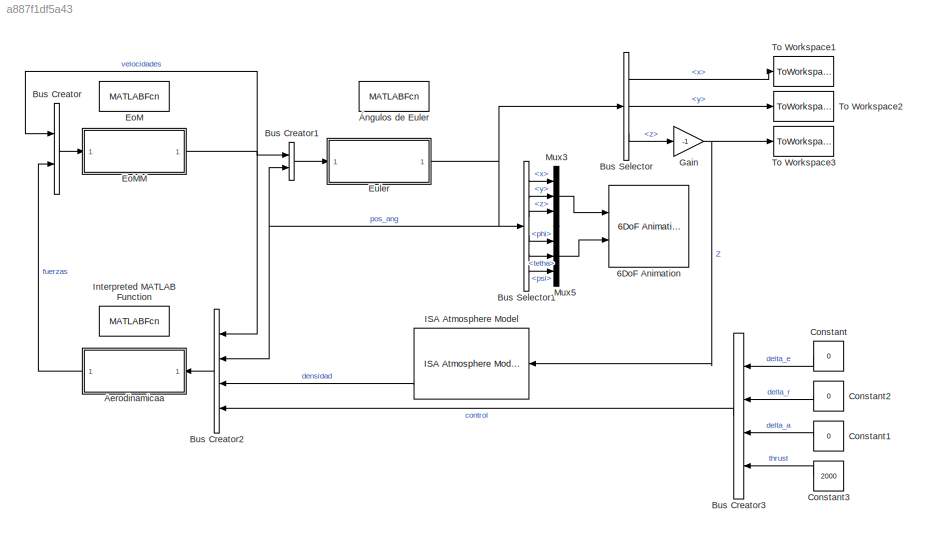
MODEL slx_a887f1df5a43
KIND model
CONFIG AbsTol = auto
CONFIG EnableMultiTasking = on
CONFIG FixedStep = 0.001
CONFIG MaxStep = auto
CONFIG MinStep = auto
CONFIG PreLoadFcn = codigos
CONFIG RelTol = 1e-3
CONFIG SampleTimeConstraint = Unconstrained
CONFIG SolverName = VariableStepAuto
CONFIG StartTime = 0.0
CONFIG StopTime = 10
BLOCK [Reference] 6DoF Animation  REF=aerolibanim/6DoF Animation
  Ports = [2]
  SourceBlock = aerolibanim/6DoF Animation
  SourceProductBaseCode = AE
  SourceType = 6DoF_Animation
BLOCK [SubSystem] Aerodinamicaa
  Ports = [1, 1]
  ReferencedSubsystem = Aerodinamicaa
  RequestExecContextInheritance = off
BLOCK [BusCreator] Bus Creator
  DisplayOption = bar
  InheritFromInputs = on
  Inputs = 2
  Ports = [2, 1]
BLOCK [BusCreator] Bus Creator1
  DisplayOption = bar
  InheritFromInputs = on
  Inputs = 2
  Ports = [2, 1]
BLOCK [BusCreator] Bus Creator2
  DisplayOption = bar
  InheritFromInputs = on
  Inputs = 4
  Ports = [4, 1]
BLOCK [BusCreator] Bus Creator3
  DisplayOption = bar
  InheritFromInputs = on
  Inputs = 4
  Ports = [4, 1]
BLOCK [BusSelector] Bus Selector
  OutputSignals = x,y,z
  Ports = [1, 3]
BLOCK [BusSelector] Bus Selector1
  OutputSignals = x,y,z,phi,tetha,psi
  Ports = [1, 6]
BLOCK [Constant] Constant
  NameLocation = top
  Value = 0
BLOCK [Constant] Constant1
  NameLocation = top
  Value = 0
BLOCK [Constant] Constant2
  NameLocation = top
  Value = 0
BLOCK [Constant] Constant3
  NameLocation = top
  Value = 2000
BLOCK [MATLABFcn] EoM
  Commented = on
  MATLABFcn = eom
  OutputDimensions = 6
  Ports = [1, 1]
BLOCK [SubSystem] EoMM
  Ports = [1, 1]
  ReferencedSubsystem = EoMM
  RequestExecContextInheritance = off
BLOCK [SubSystem] Euler
  Ports = [1, 1]
  ReferencedSubsystem = Eulerr
  RequestExecContextInheritance = off
BLOCK [Gain] Gain
  Gain = -1
BLOCK [Reference] ISA Atmosphere Model  REF=aerolibatmos2/ISA Atmosphere Model
  NameLocation = top
  Ports = [1, 4]
  SourceBlock = aerolibatmos2/ISA Atmosphere Model
  SourceProductBaseCode = AE
  SourceType = International Standard Atmosphere Model
BLOCK [MATLABFcn] Interpreted MATLAB Function
  Commented = on
  MATLABFcn = aerodinamica
  NameLocation = top
  OutputDimensions = 6
  Ports = [1, 1]
BLOCK [Mux] Mux3
  DisplayOption = bar
  Inputs = 3
  Ports = [3, 1]
BLOCK [Mux] Mux5
  DisplayOption = bar
  Inputs = 3
  Ports = [3, 1]
BLOCK [ToWorkspace] To Workspace1
  MaxDataPoints = inf
  Ports = [1]
  SampleTime = -1
  VariableName = x
BLOCK [ToWorkspace] To Workspace2
  MaxDataPoints = inf
  Ports = [1]
  SampleTime = -1
  VariableName = y
BLOCK [ToWorkspace] To Workspace3
  MaxDataPoints = inf
  Ports = [1]
  SampleTime = -1
  VariableName = z
BLOCK [MATLABFcn] Ángulos de Euler
  Commented = on
  MATLABFcn = vel_euler
  OutputDimensions = 6
  Ports = [1, 1]
LINE Aerodinamicaa:1 -> Bus Creator:2
LINE Bus Creator1:1 -> Euler:1
LINE Bus Creator2:1 -> Aerodinamicaa:1
LINE Bus Creator3:1 -> Bus Creator2:4
LINE Bus Creator:1 -> EoMM:1
LINE Bus Selector1:1 -> Mux3:1
LINE Bus Selector1:2 -> Mux3:2
LINE Bus Selector1:3 -> Mux3:3
LINE Bus Selector1:4 -> Mux5:1
LINE Bus Selector1:5 -> Mux5:2
LINE Bus Selector1:6 -> Mux5:3
LINE Bus Selector:1 -> To Workspace1:1
LINE Bus Selector:2 -> To Workspace2:1
LINE Bus Selector:3 -> Gain:1
LINE Constant1:1 -> Bus Creator3:3
LINE Constant2:1 -> Bus Creator3:2
LINE Constant3:1 -> Bus Creator3:4
LINE Constant:1 -> Bus Creator3:1
NET EoMM:1 -> Bus Creator1:1, Bus Creator2:1, Bus Creator:1
NET Euler:1 -> Bus Creator1:2, Bus Creator2:2, Bus Selector1:1, Bus Selector:1
NET Gain:1 -> ISA Atmosphere Model:1, To Workspace3:1
LINE ISA Atmosphere Model:4 -> Bus Creator2:3
LINE Mux3:1 -> 6DoF Animation:1
LINE Mux5:1 -> 6DoF Animation:2
note: NET lines group one-source signal fan-out (src -> all destinations, sorted); 1:1 wires keep LINE
